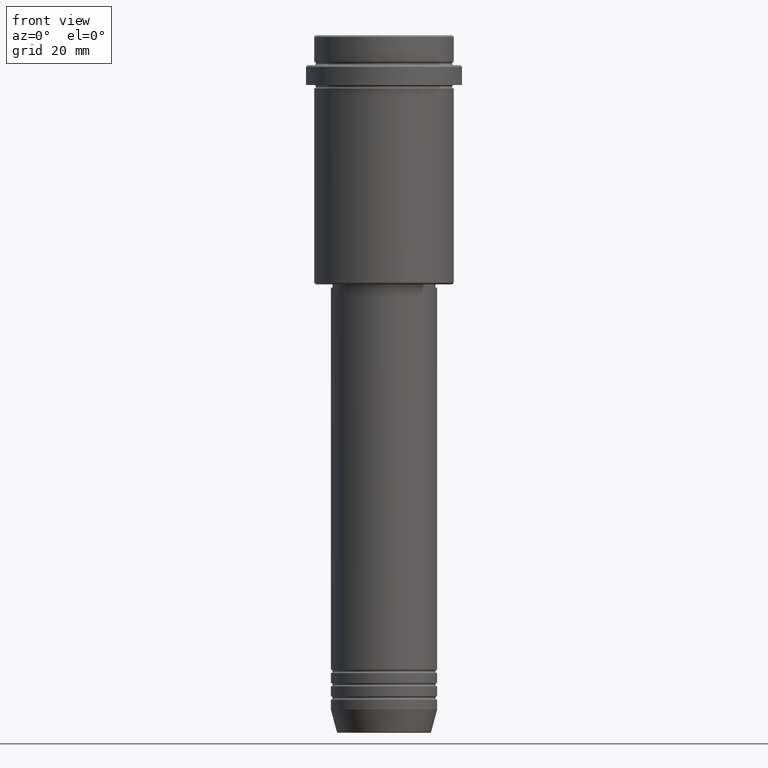
[diagram: clean part render]
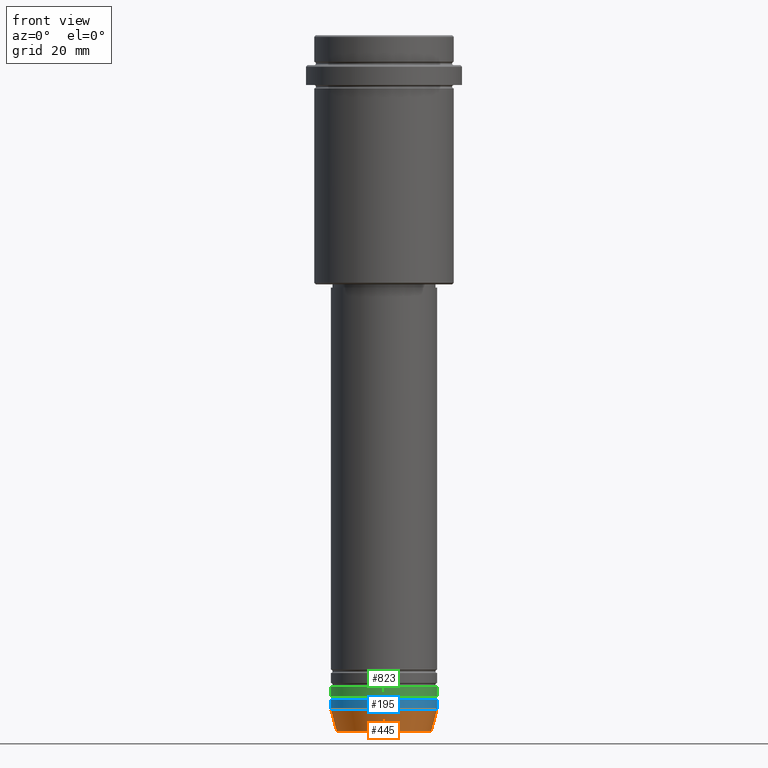
[diagram: same view with three faces highlighted in distinct colors, each labeled with its STEP entity id]
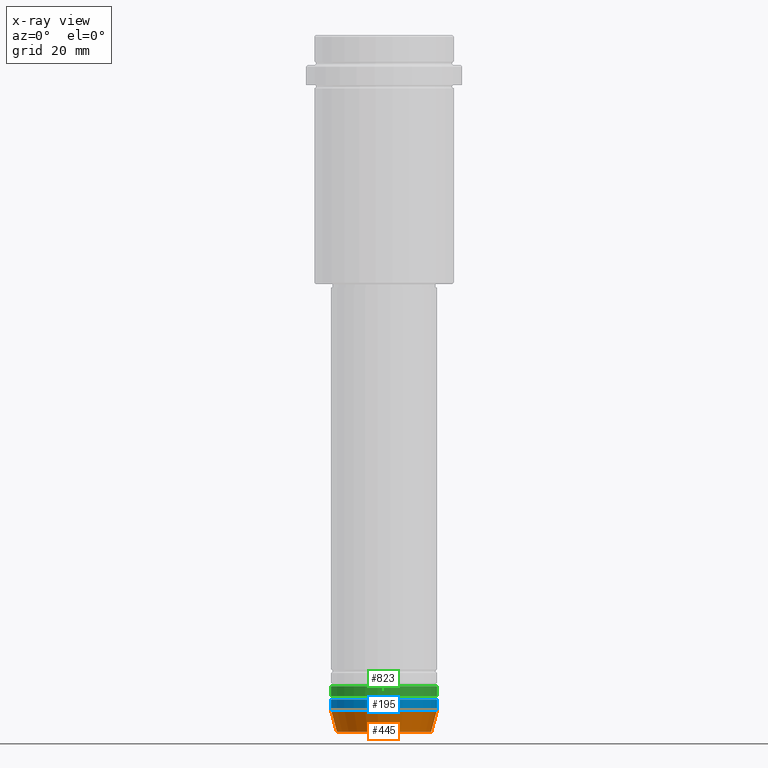
[diagram: x-ray of the same camera — body ghosted, the three highlighted faces saturated]
A machine part, front view with three faces highlighted in distinct colors.
The next image is the same camera in x-ray (body ghosted, the three faces saturated) — at least one of them is partly hidden behind the body in this view.
Their STEP definitions:

[orange] entity #445 — the highlighted conical surface has half-angle 15 deg.
#80 = CONICAL_SURFACE ( 'NONE', #1375, 16.00000000000000000, 0.2617993877991500740 ) ;
#173 = VECTOR ( 'NONE', #1324, 1000.000000000000000 ) ;
#223 = VERTEX_POINT ( 'NONE', #1181 ) ;
#233 = DIRECTION ( 'NONE',  ( 1.000000000000000000, 0.000000000000000000, 0.000000000000000000 ) ) ;
#251 = CARTESIAN_POINT ( 'NONE',  ( 14.22365507213718239, 0.000000000000000000, -209.6294095225512706 ) ) ;
#270 = VERTEX_POINT ( 'NONE', #842 ) ;
#275 = CARTESIAN_POINT ( 'NONE',  ( 16.00000000000000000, 0.000000000000000000, -203.0000000000000000 ) ) ;
#306 = CARTESIAN_POINT ( 'NONE',  ( 0.000000000000000000, 0.000000000000000000, -209.6294095225512706 ) ) ;
#345 = DIRECTION ( 'NONE',  ( -0.000000000000000000, -0.000000000000000000, 1.000000000000000000 ) ) ;
#362 = AXIS2_PLACEMENT_3D ( 'NONE', #306, #1171, #415 ) ;
#364 = CARTESIAN_POINT ( 'NONE',  ( 0.000000000000000000, 0.000000000000000000, -203.0000000000000000 ) ) ;
#415 = DIRECTION ( 'NONE',  ( 1.000000000000000000, 0.000000000000000000, 0.000000000000000000 ) ) ;
#424 = CIRCLE ( 'NONE', #362, 14.22365507213718239 ) ;
#439 = FACE_OUTER_BOUND ( 'NONE', #1215, .T. ) ;
#445 = ADVANCED_FACE ( 'NONE', ( #439 ), #80, .T. ) ;
#508 = AXIS2_PLACEMENT_3D ( 'NONE', #364, #1218, #886 ) ;
#518 = ORIENTED_EDGE ( 'NONE', *, *, #1047, .F. ) ;
#758 = EDGE_CURVE ( 'NONE', #1043, #1120, #1371, .T. ) ;
#773 = LINE ( 'NONE', #1104, #173 ) ;
#822 = DIRECTION ( 'NONE',  ( 0.2588190451025213501, 0.000000000000000000, 0.9659258262890680902 ) ) ;
#842 = CARTESIAN_POINT ( 'NONE',  ( -14.22365507213718239, 1.850665122131322942E-15, -209.6294095225512706 ) ) ;
#843 = EDGE_CURVE ( 'NONE', #270, #1043, #424, .T. ) ;
#849 = ORIENTED_EDGE ( 'NONE', *, *, #758, .T. ) ;
#886 = DIRECTION ( 'NONE',  ( 1.000000000000000000, 0.000000000000000000, 0.000000000000000000 ) ) ;
#959 = ORIENTED_EDGE ( 'NONE', *, *, #1179, .F. ) ;
#1043 = VERTEX_POINT ( 'NONE', #251 ) ;
#1047 = EDGE_CURVE ( 'NONE', #223, #1120, #1270, .T. ) ;
#1104 = CARTESIAN_POINT ( 'NONE',  ( -16.00000000000000000, 1.959434878635765131E-15, -203.0000000000000000 ) ) ;
#1114 = CARTESIAN_POINT ( 'NONE',  ( 0.000000000000000000, 0.000000000000000000, -203.0000000000000000 ) ) ;
#1120 = VERTEX_POINT ( 'NONE', #1338 ) ;
#1171 = DIRECTION ( 'NONE',  ( -0.000000000000000000, -0.000000000000000000, 1.000000000000000000 ) ) ;
#1179 = EDGE_CURVE ( 'NONE', #270, #223, #773, .T. ) ;
#1181 = CARTESIAN_POINT ( 'NONE',  ( -16.00000000000000000, 1.959434878635765131E-15, -203.0000000000000000 ) ) ;
#1215 = EDGE_LOOP ( 'NONE', ( #959, #1226, #849, #518 ) ) ;
#1218 = DIRECTION ( 'NONE',  ( -0.000000000000000000, -0.000000000000000000, 1.000000000000000000 ) ) ;
#1226 = ORIENTED_EDGE ( 'NONE', *, *, #843, .T. ) ;
#1270 = CIRCLE ( 'NONE', #508, 16.00000000000000000 ) ;
#1291 = VECTOR ( 'NONE', #822, 1000.000000000000000 ) ;
#1324 = DIRECTION ( 'NONE',  ( -0.2588190451025213501, 3.169619151431772337E-17, 0.9659258262890680902 ) ) ;
#1338 = CARTESIAN_POINT ( 'NONE',  ( 16.00000000000000000, 0.000000000000000000, -203.0000000000000000 ) ) ;
#1371 = LINE ( 'NONE', #275, #1291 ) ;
#1375 = AXIS2_PLACEMENT_3D ( 'NONE', #1114, #345, #233 ) ;

[blue] entity #195 — the highlighted cylindrical surface (partial cylindrical patch) has radius 16 mm, axis along (-0, -0, 1).
#72 = CARTESIAN_POINT ( 'NONE',  ( 0.000000000000000000, 0.000000000000000000, 0.000000000000000000 ) ) ;
#131 = CARTESIAN_POINT ( 'NONE',  ( 16.00000000000000000, 0.000000000000000000, 0.000000000000000000 ) ) ;
#195 = ADVANCED_FACE ( 'NONE', ( #918 ), #1356, .T. ) ;
#203 = ORIENTED_EDGE ( 'NONE', *, *, #326, .F. ) ;
#223 = VERTEX_POINT ( 'NONE', #1181 ) ;
#224 = LINE ( 'NONE', #1191, #1014 ) ;
#231 = DIRECTION ( 'NONE',  ( -0.000000000000000000, -0.000000000000000000, 1.000000000000000000 ) ) ;
#297 = VERTEX_POINT ( 'NONE', #848 ) ;
#323 = ORIENTED_EDGE ( 'NONE', *, *, #1003, .F. ) ;
#326 = EDGE_CURVE ( 'NONE', #223, #297, #224, .T. ) ;
#330 = DIRECTION ( 'NONE',  ( -0.000000000000000000, -0.000000000000000000, 1.000000000000000000 ) ) ;
#332 = CIRCLE ( 'NONE', #645, 16.00000000000000000 ) ;
#346 = ORIENTED_EDGE ( 'NONE', *, *, #603, .T. ) ;
#364 = CARTESIAN_POINT ( 'NONE',  ( 0.000000000000000000, 0.000000000000000000, -203.0000000000000000 ) ) ;
#480 = DIRECTION ( 'NONE',  ( -0.000000000000000000, -0.000000000000000000, 1.000000000000000000 ) ) ;
#508 = AXIS2_PLACEMENT_3D ( 'NONE', #364, #1218, #886 ) ;
#516 = DIRECTION ( 'NONE',  ( 1.000000000000000000, 0.000000000000000000, 0.000000000000000000 ) ) ;
#531 = DIRECTION ( 'NONE',  ( 1.000000000000000000, 0.000000000000000000, 0.000000000000000000 ) ) ;
#603 = EDGE_CURVE ( 'NONE', #1120, #987, #701, .T. ) ;
#639 = CARTESIAN_POINT ( 'NONE',  ( 16.00000000000000000, 0.000000000000000000, -200.0000000000000000 ) ) ;
#645 = AXIS2_PLACEMENT_3D ( 'NONE', #1303, #330, #531 ) ;
#701 = LINE ( 'NONE', #131, #1241 ) ;
#729 = ORIENTED_EDGE ( 'NONE', *, *, #1047, .T. ) ;
#848 = CARTESIAN_POINT ( 'NONE',  ( -16.00000000000000000, 1.959434878635765131E-15, -200.0000000000000000 ) ) ;
#886 = DIRECTION ( 'NONE',  ( 1.000000000000000000, 0.000000000000000000, 0.000000000000000000 ) ) ;
#918 = FACE_OUTER_BOUND ( 'NONE', #1100, .T. ) ;
#987 = VERTEX_POINT ( 'NONE', #639 ) ;
#1003 = EDGE_CURVE ( 'NONE', #297, #987, #332, .T. ) ;
#1014 = VECTOR ( 'NONE', #231, 1000.000000000000000 ) ;
#1047 = EDGE_CURVE ( 'NONE', #223, #1120, #1270, .T. ) ;
#1050 = DIRECTION ( 'NONE',  ( -0.000000000000000000, -0.000000000000000000, 1.000000000000000000 ) ) ;
#1100 = EDGE_LOOP ( 'NONE', ( #203, #729, #346, #323 ) ) ;
#1108 = AXIS2_PLACEMENT_3D ( 'NONE', #72, #1050, #516 ) ;
#1120 = VERTEX_POINT ( 'NONE', #1338 ) ;
#1181 = CARTESIAN_POINT ( 'NONE',  ( -16.00000000000000000, 1.959434878635765131E-15, -203.0000000000000000 ) ) ;
#1191 = CARTESIAN_POINT ( 'NONE',  ( -16.00000000000000000, 1.959434878635765131E-15, 0.000000000000000000 ) ) ;
#1218 = DIRECTION ( 'NONE',  ( -0.000000000000000000, -0.000000000000000000, 1.000000000000000000 ) ) ;
#1241 = VECTOR ( 'NONE', #480, 1000.000000000000000 ) ;
#1270 = CIRCLE ( 'NONE', #508, 16.00000000000000000 ) ;
#1303 = CARTESIAN_POINT ( 'NONE',  ( 0.000000000000000000, 0.000000000000000000, -200.0000000000000000 ) ) ;
#1338 = CARTESIAN_POINT ( 'NONE',  ( 16.00000000000000000, 0.000000000000000000, -203.0000000000000000 ) ) ;
#1356 = CYLINDRICAL_SURFACE ( 'NONE', #1108, 16.00000000000000000 ) ;

[green] entity #823 — the highlighted cylindrical surface (partial cylindrical patch) has radius 16 mm, axis along (-0, -0, 1).
#20 = CARTESIAN_POINT ( 'NONE',  ( -16.00000000000000000, 1.959434878635765131E-15, -198.9999999999998863 ) ) ;
#34 = AXIS2_PLACEMENT_3D ( 'NONE', #553, #111, #1315 ) ;
#43 = EDGE_CURVE ( 'NONE', #1141, #1363, #1403, .T. ) ;
#65 = CARTESIAN_POINT ( 'NONE',  ( -16.00000000000000000, 1.959434878635765131E-15, -195.9999999999998863 ) ) ;
#100 = VECTOR ( 'NONE', #841, 1000.000000000000000 ) ;
#111 = DIRECTION ( 'NONE',  ( -0.000000000000000000, -0.000000000000000000, 1.000000000000000000 ) ) ;
#255 = VERTEX_POINT ( 'NONE', #1392 ) ;
#304 = EDGE_CURVE ( 'NONE', #1363, #255, #742, .T. ) ;
#314 = CARTESIAN_POINT ( 'NONE',  ( 0.000000000000000000, 0.000000000000000000, -195.9999999999998863 ) ) ;
#322 = ORIENTED_EDGE ( 'NONE', *, *, #43, .F. ) ;
#411 = DIRECTION ( 'NONE',  ( 1.000000000000000000, 0.000000000000000000, 0.000000000000000000 ) ) ;
#448 = CIRCLE ( 'NONE', #34, 16.00000000000000000 ) ;
#449 = EDGE_LOOP ( 'NONE', ( #322, #1053, #552, #1267 ) ) ;
#507 = VERTEX_POINT ( 'NONE', #993 ) ;
#524 = LINE ( 'NONE', #966, #100 ) ;
#552 = ORIENTED_EDGE ( 'NONE', *, *, #1387, .T. ) ;
#553 = CARTESIAN_POINT ( 'NONE',  ( 0.000000000000000000, 0.000000000000000000, -198.9999999999998863 ) ) ;
#618 = DIRECTION ( 'NONE',  ( -0.000000000000000000, -0.000000000000000000, 1.000000000000000000 ) ) ;
#636 = DIRECTION ( 'NONE',  ( 1.000000000000000000, 0.000000000000000000, 0.000000000000000000 ) ) ;
#698 = AXIS2_PLACEMENT_3D ( 'NONE', #924, #618, #411 ) ;
#742 = CIRCLE ( 'NONE', #1196, 16.00000000000000000 ) ;
#747 = DIRECTION ( 'NONE',  ( -0.000000000000000000, -0.000000000000000000, 1.000000000000000000 ) ) ;
#807 = DIRECTION ( 'NONE',  ( -0.000000000000000000, -0.000000000000000000, 1.000000000000000000 ) ) ;
#823 = ADVANCED_FACE ( 'NONE', ( #1389 ), #1157, .T. ) ;
#841 = DIRECTION ( 'NONE',  ( -0.000000000000000000, -0.000000000000000000, 1.000000000000000000 ) ) ;
#922 = EDGE_CURVE ( 'NONE', #1141, #507, #448, .T. ) ;
#924 = CARTESIAN_POINT ( 'NONE',  ( 0.000000000000000000, 0.000000000000000000, 0.000000000000000000 ) ) ;
#933 = CARTESIAN_POINT ( 'NONE',  ( -16.00000000000000000, 1.959434878635765131E-15, 0.000000000000000000 ) ) ;
#966 = CARTESIAN_POINT ( 'NONE',  ( 16.00000000000000000, 0.000000000000000000, 0.000000000000000000 ) ) ;
#993 = CARTESIAN_POINT ( 'NONE',  ( 16.00000000000000000, 0.000000000000000000, -198.9999999999998863 ) ) ;
#1032 = VECTOR ( 'NONE', #807, 1000.000000000000000 ) ;
#1053 = ORIENTED_EDGE ( 'NONE', *, *, #922, .T. ) ;
#1141 = VERTEX_POINT ( 'NONE', #20 ) ;
#1157 = CYLINDRICAL_SURFACE ( 'NONE', #698, 16.00000000000000000 ) ;
#1196 = AXIS2_PLACEMENT_3D ( 'NONE', #314, #747, #636 ) ;
#1267 = ORIENTED_EDGE ( 'NONE', *, *, #304, .F. ) ;
#1315 = DIRECTION ( 'NONE',  ( 1.000000000000000000, 0.000000000000000000, 0.000000000000000000 ) ) ;
#1363 = VERTEX_POINT ( 'NONE', #65 ) ;
#1387 = EDGE_CURVE ( 'NONE', #507, #255, #524, .T. ) ;
#1389 = FACE_OUTER_BOUND ( 'NONE', #449, .T. ) ;
#1392 = CARTESIAN_POINT ( 'NONE',  ( 16.00000000000000000, 0.000000000000000000, -195.9999999999998863 ) ) ;
#1403 = LINE ( 'NONE', #933, #1032 ) ;